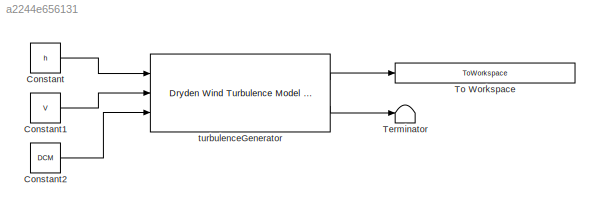
MODEL slx_a2244e656131
KIND model
CONFIG AbsTol = auto
CONFIG EnableMultiTasking = off
CONFIG FixedStep = 0.01
CONFIG MaxStep = auto
CONFIG MinStep = auto
CONFIG RelTol = 1e-3
CONFIG SampleTimeConstraint = Unconstrained
CONFIG Solver = FixedStepAuto
CONFIG SolverName = FixedStepAuto
CONFIG StartTime = 0.0
CONFIG StopTime = 125
BLOCK [Constant] Constant
  Value = h
BLOCK [Constant] Constant1
  Value = V
BLOCK [Constant] Constant2
  Value = DCM
BLOCK [Terminator] Terminator
BLOCK [ToWorkspace] To Workspace
  FixptAsFi = on
  MaxDataPoints = inf
  Ports = [1]
  SampleTime = -1
  SaveFormat = Timeseries
  VariableName = windTurbulenceSimulink
BLOCK [Reference] turbulenceGenerator  REF=aerolibwind2/Dryden Wind Turbulence Model 
(Continuous (+q -r))
  Ports = [3, 2]
  SourceBlock = aerolibwind2/Dryden Wind Turbulence Model \n(Continuous (+q -r))
  SourceProductBaseCode = AE
  SourceProductName = Aerospace Blockset
  SourceType = Wind Turbulence Model
LINE Constant1:1 -> turbulenceGenerator:2
LINE Constant2:1 -> turbulenceGenerator:3
LINE Constant:1 -> turbulenceGenerator:1
LINE turbulenceGenerator:1 -> To Workspace:1
LINE turbulenceGenerator:2 -> Terminator:1
